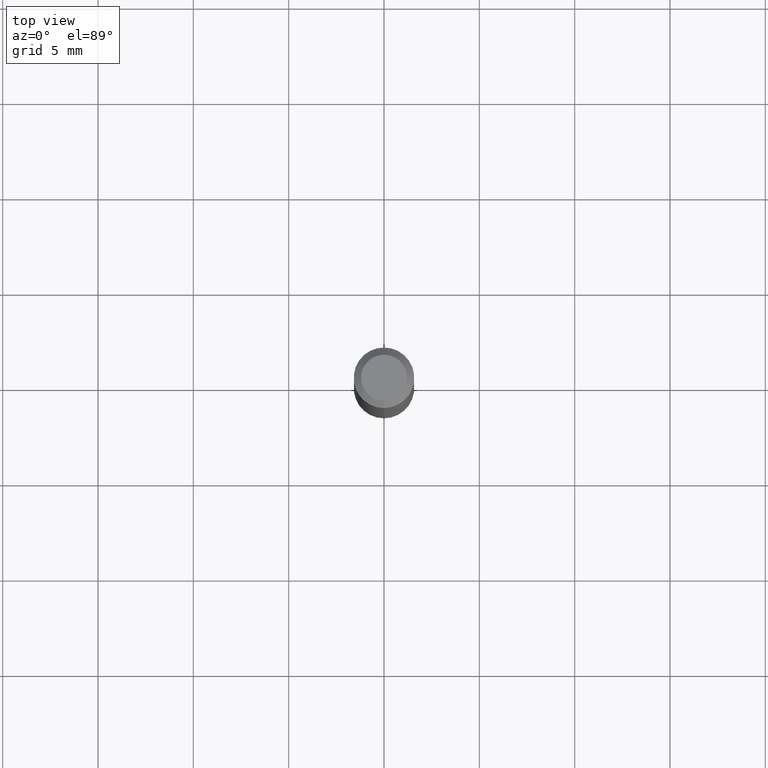
[diagram: clean part render]
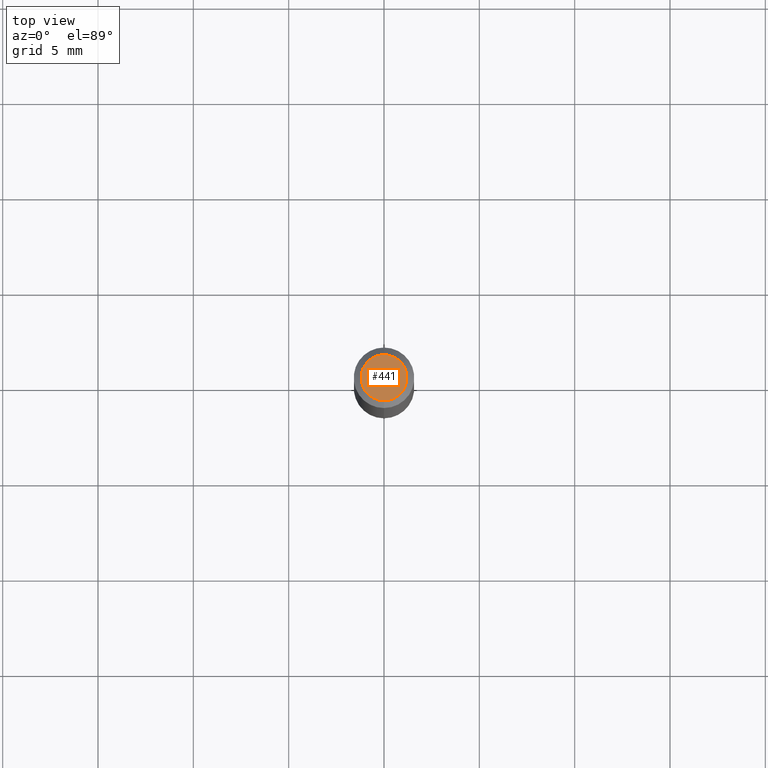
[diagram: same view with one face highlighted and labeled with its STEP entity id]
A machine part, top view. The second image highlights one B-rep face of the part: STEP entity #441.
In plain terms, the highlighted planar face has unit normal (0, -0, -1).
Its self-contained STEP definition (entity closure, byte-faithful):
#55 = CARTESIAN_POINT ( 'NONE',  ( 3.840629472727447874E-16, 0.04749999999999999362, -2.313455976474456035E-16 ) ) ;
#77 = DIRECTION ( 'NONE',  ( -2.445473868561533157E-29, 3.491474089232013110E-15, 1.000000000000000000 ) ) ;
#121 = PLANE ( 'NONE',  #457 ) ;
#169 = AXIS2_PLACEMENT_3D ( 'NONE', #332, #469, #170 ) ;
#170 = DIRECTION ( 'NONE',  ( -6.982962677686266711E-15, -1.000000000000000000, 3.491474089232013505E-15 ) ) ;
#171 = VERTEX_POINT ( 'NONE', #479 ) ;
#190 = CARTESIAN_POINT ( 'NONE',  ( 3.316907271900976096E-16, 0.04749999999999999362, -1.985953084429831200E-16 ) ) ;
#201 = AXIS2_PLACEMENT_3D ( 'NONE', #497, #77, #509 ) ;
#212 = VERTEX_POINT ( 'NONE', #55 ) ;
#221 = CIRCLE ( 'NONE', #169, 0.04749999999999999362 ) ;
#227 = DIRECTION ( 'NONE',  ( 6.982962677686265922E-15, 1.000000000000000000, -3.491474089232013110E-15 ) ) ;
#269 = FACE_OUTER_BOUND ( 'NONE', #416, .T. ) ;
#284 = ORIENTED_EDGE ( 'NONE', *, *, #312, .T. ) ;
#285 = DIRECTION ( 'NONE',  ( 2.445473868561532877E-29, -3.491474089232013110E-15, -1.000000000000000000 ) ) ;
#312 = EDGE_CURVE ( 'NONE', #171, #212, #221, .T. ) ;
#332 = CARTESIAN_POINT ( 'NONE',  ( 1.601799528746918197E-45, -2.286935723444714811E-31, -6.550057840892499159E-17 ) ) ;
#337 = ORIENTED_EDGE ( 'NONE', *, *, #355, .T. ) ;
#355 = EDGE_CURVE ( 'NONE', #212, #171, #478, .T. ) ;
#416 = EDGE_LOOP ( 'NONE', ( #337, #284 ) ) ;
#441 = ADVANCED_FACE ( 'NONE', ( #269 ), #121, .F. ) ;
#457 = AXIS2_PLACEMENT_3D ( 'NONE', #190, #285, #227 ) ;
#469 = DIRECTION ( 'NONE',  ( -2.445473868561533157E-29, 3.491474089232013110E-15, 1.000000000000000000 ) ) ;
#478 = CIRCLE ( 'NONE', #201, 0.04749999999999999362 ) ;
#479 = CARTESIAN_POINT ( 'NONE',  ( -3.773273898774340269E-16, -0.04749999999999999362, 1.003444408295956080E-16 ) ) ;
#497 = CARTESIAN_POINT ( 'NONE',  ( 1.601799528746918197E-45, -2.286935723444714811E-31, -6.550057840892499159E-17 ) ) ;
#509 = DIRECTION ( 'NONE',  ( -6.982962677686266711E-15, -1.000000000000000000, 3.491474089232013505E-15 ) ) ;